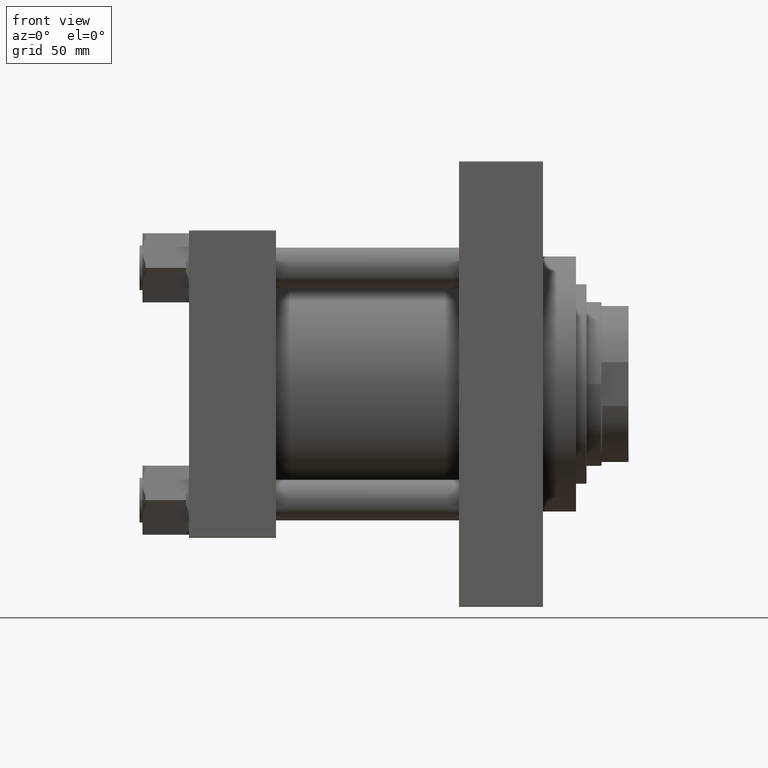
[diagram: clean part render]
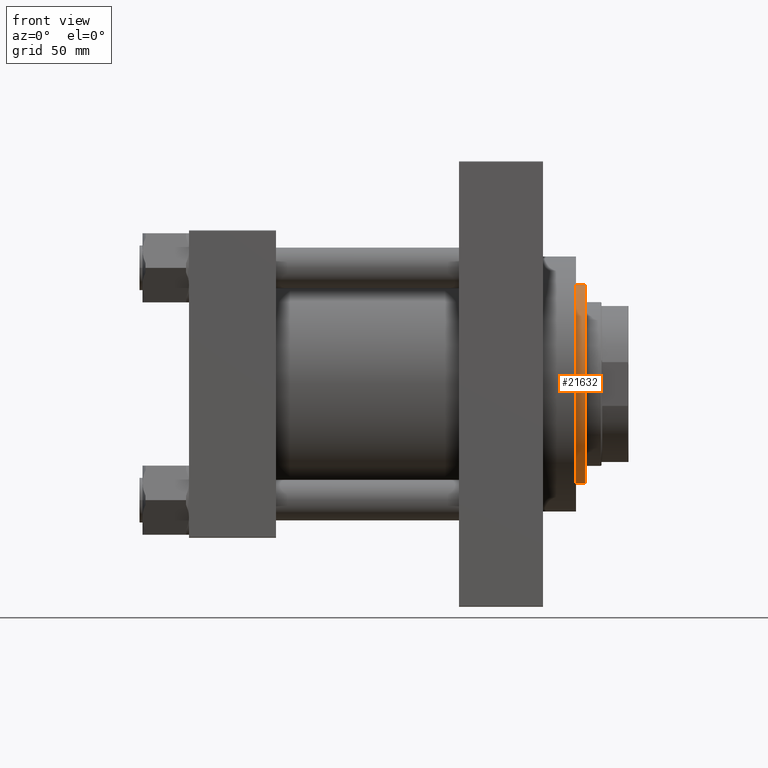
[diagram: same view with one face highlighted and labeled with its STEP entity id]
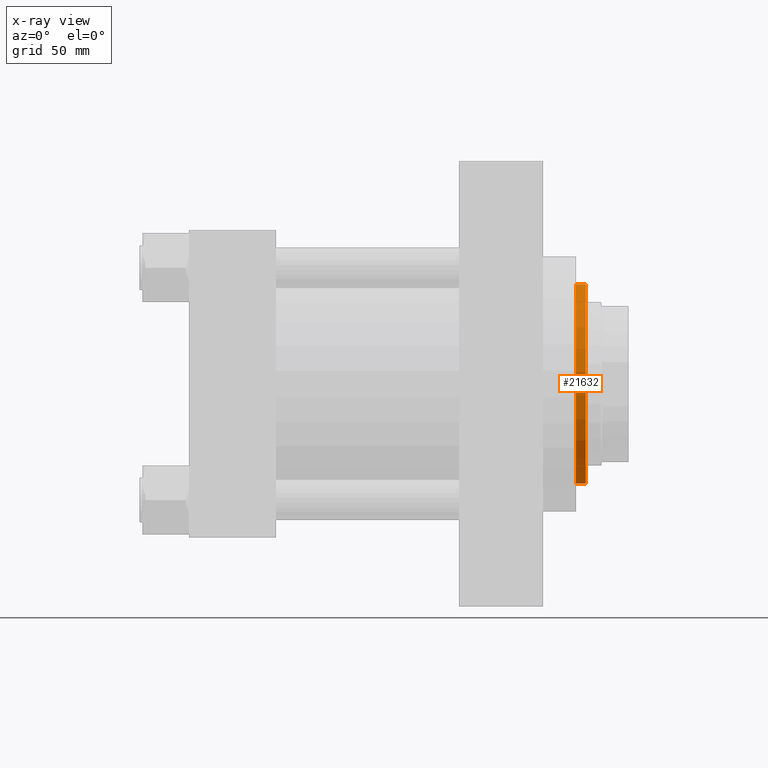
[diagram: x-ray of the same camera — body ghosted, the highlighted face saturated]
A machine part, front view. The second image highlights one B-rep face of the part: STEP entity #21632.
The next image is the same camera in x-ray: the body ghosted, the highlighted face saturated — about 0% of this face is hidden behind the body in this view.
In plain terms, the highlighted cylindrical surface (partial cylindrical patch) has radius 66.5 mm, axis along (-1, 0, 0).
Its self-contained STEP definition (entity closure, byte-faithful):
#65 = CIRCLE ( 'NONE', #3141, 66.50000000000000000 ) ;
#562 = DIRECTION ( 'NONE',  ( 0.000000000000000000, 0.000000000000000000, -1.000000000000000000 ) ) ;
#3141 = AXIS2_PLACEMENT_3D ( 'NONE', #25690, #562, #8036 ) ;
#4629 = CARTESIAN_POINT ( 'NONE',  ( -66.50000000000000000, 0.000000000000000000, 49.76000000000004064 ) ) ;
#5512 = DIRECTION ( 'NONE',  ( -1.000000000000000000, 0.000000000000000000, 0.000000000000000000 ) ) ;
#5647 = CIRCLE ( 'NONE', #44233, 66.50000000000000000 ) ;
#7316 = VERTEX_POINT ( 'NONE', #15837 ) ;
#7816 = CARTESIAN_POINT ( 'NONE',  ( -66.50000000000000000, 0.000000000000000000, 50.25999999999999801 ) ) ;
#8036 = DIRECTION ( 'NONE',  ( 1.000000000000000000, 0.000000000000000000, 0.000000000000000000 ) ) ;
#10437 = VECTOR ( 'NONE', #45888, 1000.000000000000000 ) ;
#12737 = DIRECTION ( 'NONE',  ( 0.000000000000000000, 0.000000000000000000, 1.000000000000000000 ) ) ;
#15837 = CARTESIAN_POINT ( 'NONE',  ( -66.50000000000000000, 0.000000000000000000, 43.25999999999999801 ) ) ;
#16370 = DIRECTION ( 'NONE',  ( -0.000000000000000000, -0.000000000000000000, -1.000000000000000000 ) ) ;
#19894 = ORIENTED_EDGE ( 'NONE', *, *, #30702, .T. ) ;
#21632 = ADVANCED_FACE ( 'NONE', ( #26625 ), #24122, .T. ) ;
#23855 = DIRECTION ( 'NONE',  ( 1.000000000000000000, 0.000000000000000000, 0.000000000000000000 ) ) ;
#24122 = CYLINDRICAL_SURFACE ( 'NONE', #40974, 66.50000000000000000 ) ;
#24811 = EDGE_CURVE ( 'NONE', #45940, #34694, #65, .T. ) ;
#25382 = ORIENTED_EDGE ( 'NONE', *, *, #36160, .F. ) ;
#25690 = CARTESIAN_POINT ( 'NONE',  ( 0.000000000000000000, 0.000000000000000000, 49.76000000000004064 ) ) ;
#26625 = FACE_OUTER_BOUND ( 'NONE', #35581, .T. ) ;
#27308 = VECTOR ( 'NONE', #34383, 1000.000000000000000 ) ;
#30702 = EDGE_CURVE ( 'NONE', #36493, #7316, #5647, .T. ) ;
#32304 = ORIENTED_EDGE ( 'NONE', *, *, #24811, .T. ) ;
#32843 = CARTESIAN_POINT ( 'NONE',  ( 66.50000000000000000, 8.143901214329899974E-15, 49.76000000000004064 ) ) ;
#33843 = CARTESIAN_POINT ( 'NONE',  ( 66.50000000000000000, 8.143901214329899974E-15, 50.25999999999999801 ) ) ;
#34383 = DIRECTION ( 'NONE',  ( -0.000000000000000000, -0.000000000000000000, -1.000000000000000000 ) ) ;
#34694 = VERTEX_POINT ( 'NONE', #32843 ) ;
#35285 = CARTESIAN_POINT ( 'NONE',  ( 66.50000000000000000, 8.143901214329899974E-15, 43.25999999999999801 ) ) ;
#35581 = EDGE_LOOP ( 'NONE', ( #32304, #42308, #19894, #25382 ) ) ;
#36160 = EDGE_CURVE ( 'NONE', #45940, #7316, #40918, .T. ) ;
#36493 = VERTEX_POINT ( 'NONE', #35285 ) ;
#39422 = EDGE_CURVE ( 'NONE', #34694, #36493, #41794, .T. ) ;
#40918 = LINE ( 'NONE', #7816, #27308 ) ;
#40974 = AXIS2_PLACEMENT_3D ( 'NONE', #44977, #16370, #5512 ) ;
#41794 = LINE ( 'NONE', #33843, #10437 ) ;
#42218 = CARTESIAN_POINT ( 'NONE',  ( 0.000000000000000000, 0.000000000000000000, 43.25999999999999801 ) ) ;
#42308 = ORIENTED_EDGE ( 'NONE', *, *, #39422, .T. ) ;
#44233 = AXIS2_PLACEMENT_3D ( 'NONE', #42218, #12737, #23855 ) ;
#44977 = CARTESIAN_POINT ( 'NONE',  ( 0.000000000000000000, 0.000000000000000000, 50.25999999999999801 ) ) ;
#45888 = DIRECTION ( 'NONE',  ( -0.000000000000000000, -0.000000000000000000, -1.000000000000000000 ) ) ;
#45940 = VERTEX_POINT ( 'NONE', #4629 ) ;